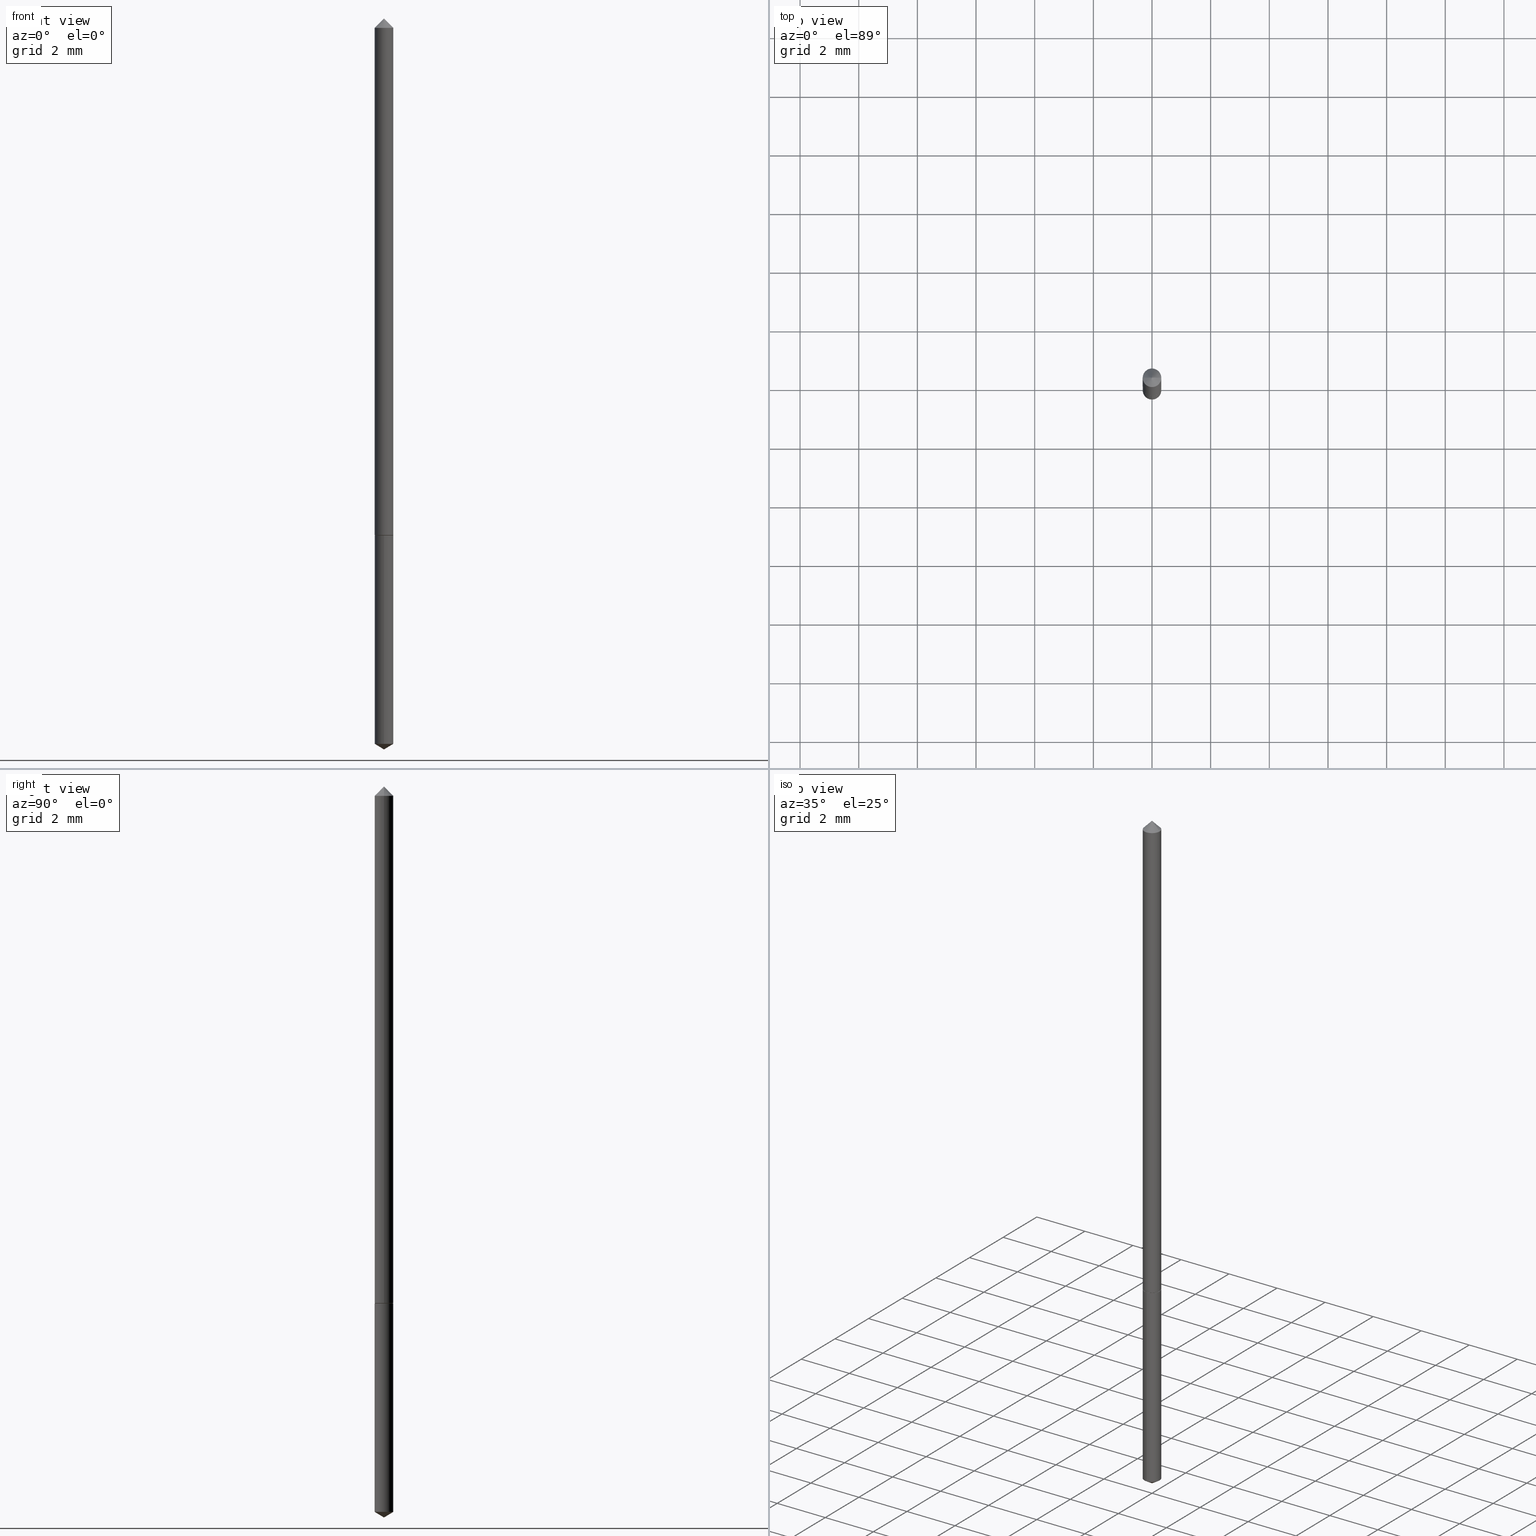
[diagram: canonical four-view strip — front | top / right | iso, engineering-drawing reading convention]
A machine part, canonical four-view strip (front | top / right | iso — engineering-drawing reading convention). The complete STEP part file that produces these views, byte-faithful:
ISO-10303-21;
HEADER;
FILE_DESCRIPTION (( 'STEP AP203' ),
    '1' );
FILE_NAME ('51072.STEP',
    '2024-04-22T18:23:46',
    ( '' ),
    ( '' ),
    'SwSTEP 2.0',
    'SolidWorks 2023',
    '' );
FILE_SCHEMA (( 'CONFIG_CONTROL_DESIGN' ));
ENDSEC;

DATA;
#1 = DIRECTION ( 'NONE',  ( 1.000000000000000000, -6.982962677686266711E-15, 4.876176775795936353E-29 ) ) ;
#2 = APPROVAL_STATUS ( 'not_yet_approved' ) ;
#3 = AXIS2_PLACEMENT_3D ( 'NONE', #85, #82, #169 ) ;
#4 = CARTESIAN_POINT ( 'NONE',  ( -8.728703347106090499E-17, -0.01250000000000249002, -0.7125000000000000222 ) ) ;
#5 = ADVANCED_FACE ( 'NONE', ( #41 ), #201, .T. ) ;
#6 = FACE_OUTER_BOUND ( 'NONE', #110, .T. ) ;
#7 = CARTESIAN_POINT ( 'NONE',  ( 1.742396524406909713E-29, -2.487680453925741193E-15, -0.7125000000000000222 ) ) ;
#8 = DIRECTION ( 'NONE',  ( 1.000000000000000000, -6.982962677686283277E-15, 0.000000000000000000 ) ) ;
#9 = DIRECTION ( 'NONE',  ( -2.445398323987981261E-29, 3.491582273361069499E-15, 1.000000000000000000 ) ) ;
#10 = EDGE_CURVE ( 'NONE', #217, #73, #38, .T. ) ;
#11 = CIRCLE ( 'NONE', #225, 0.01200000000000010433 ) ;
#12 = VECTOR ( 'NONE', #290, 39.37007874015748854 ) ;
#13 = DIMENSIONAL_EXPONENTS ( 1.000000000000000000, 0.000000000000000000, 0.000000000000000000, 0.000000000000000000, 0.000000000000000000, 0.000000000000000000, 0.000000000000000000 ) ;
#14 = LINE ( 'NONE', #49, #163 ) ;
#15 = MANIFOLD_SOLID_BREP ( 'Body-Move/Copy2[2]', #237 ) ;
#16 = CIRCLE ( 'NONE', #335, 0.01250000000000008916 ) ;
#17 = EDGE_CURVE ( 'NONE', #323, #360, #132, .T. ) ;
#18 = ORIENTED_EDGE ( 'NONE', *, *, #103, .T. ) ;
#19 = DIRECTION ( 'NONE',  ( -2.445398323987980980E-29, 3.491582273361069499E-15, 1.000000000000000000 ) ) ;
#20 = ORIENTED_EDGE ( 'NONE', *, *, #314, .F. ) ;
#21 = CARTESIAN_POINT ( 'NONE',  ( -0.01250000000000000590, -2.182175836777064042E-17, -0.03125000000000020123 ) ) ;
#22 = ORIENTED_EDGE ( 'NONE', *, *, #157, .F. ) ;
#23 = CARTESIAN_POINT ( 'NONE',  ( 7.642090019328601786E-31, -1.091087918388490144E-16, -0.03125000000000020123 ) ) ;
#24 = DATE_TIME_ROLE ( 'classification_date' ) ;
#25 = AXIS2_PLACEMENT_3D ( 'NONE', #108, #142, #55 ) ;
#26 = AXIS2_PLACEMENT_3D ( 'NONE', #195, #316, #166 ) ;
#27 = CARTESIAN_POINT ( 'NONE',  ( 2.445398323987981261E-29, -3.491582273361069499E-15, -1.000000000000000000 ) ) ;
#28 = CARTESIAN_POINT ( 'NONE',  ( 0.01200000000000010433, -2.571476006057977309E-15, -0.7125000000000000222 ) ) ;
#29 = APPLICATION_CONTEXT ( 'configuration controlled 3d designs of mechanical parts and assemblies' ) ;
#30 = CARTESIAN_POINT ( 'NONE',  ( 0.01250000000000008916, -2.573221746727398418E-15, -0.7119999999999999662 ) ) ;
#31 = EDGE_CURVE ( 'NONE', #86, #172, #32, .T. ) ;
#32 = CIRCLE ( 'NONE', #25, 0.01250000000000000069 ) ;
#33 = APPROVAL_PERSON_ORGANIZATION ( #178, #72, #118 ) ;
#34 = LENGTH_MEASURE_WITH_UNIT ( LENGTH_MEASURE( 0.02539999999999999897 ), #241 );
#35 = EDGE_CURVE ( 'NONE', #172, #86, #248, .T. ) ;
#36 = EDGE_LOOP ( 'NONE', ( #22, #239, #126 ) ) ;
#37 = CARTESIAN_POINT ( 'NONE',  ( 0.000000000000000000, 0.000000000000000000, 0.000000000000000000 ) ) ;
#38 = CIRCLE ( 'NONE', #101, 0.01200000000000010433 ) ;
#39 = EDGE_LOOP ( 'NONE', ( #127, #107, #135, #242 ) ) ;
#40 = PERSON_AND_ORGANIZATION ( #260, #115 ) ;
#41 = FACE_OUTER_BOUND ( 'NONE', #75, .T. ) ;
#42 = CARTESIAN_POINT ( 'NONE',  ( -9.383007602390250808E-28, 1.339723586724463166E-13, 38.37007874015748143 ) ) ;
#43 = ORIENTED_EDGE ( 'NONE', *, *, #31, .T. ) ;
#44 = CC_DESIGN_PERSON_AND_ORGANIZATION_ASSIGNMENT ( #173, #312, ( #279 ) ) ;
#45 = AXIS2_PLACEMENT_3D ( 'NONE', #81, #287, #283 ) ;
#46 = DIRECTION ( 'NONE',  ( -0.7071067811865112684, 7.493145998870223209E-15, 0.7071067811865837660 ) ) ;
#47 = ADVANCED_FACE ( 'NONE', ( #280 ), #74, .T. ) ;
#48 = APPLICATION_CONTEXT ( 'configuration controlled 3d designs of mechanical parts and assemblies' ) ;
#49 = CARTESIAN_POINT ( 'NONE',  ( 0.01250000000000000590, -1.948650168109932156E-16, -0.03125000000000020123 ) ) ;
#50 = CLOSED_SHELL ( 'NONE', ( #322, #294, #177, #244, #146 ) ) ;
#51 = AXIS2_PLACEMENT_3D ( 'NONE', #128, #236, #269 ) ;
#52 = DIRECTION ( 'NONE',  ( -2.445468806185136597E-29, 3.491481338843145583E-15, 1.000000000000000000 ) ) ;
#53 = DATE_AND_TIME ( #341, #205 ) ;
#54 = PLANE ( 'NONE',  #3 ) ;
#55 = DIRECTION ( 'NONE',  ( -6.982962677686265133E-15, -1.000000000000000000, 0.000000000000000000 ) ) ;
#56 = CALENDAR_DATE ( 2024, 22, 4 ) ;
#57 = EDGE_LOOP ( 'NONE', ( #332, #196, #106 ) ) ;
#58 = DIRECTION ( 'NONE',  ( 1.000000000000000000, -6.982962677686266711E-15, 4.876176775795936353E-29 ) ) ;
#59 = EDGE_CURVE ( 'NONE', #172, #281, #117, .T. ) ;
#60 = LINE ( 'NONE', #27, #12 ) ;
#61 = CARTESIAN_POINT ( 'NONE',  ( -8.728703347106090499E-17, -0.01250000000000249002, -0.7125000000000000222 ) ) ;
#62 = CARTESIAN_POINT ( 'NONE',  ( -0.01250000000000000590, -1.208703910577569624E-15, -0.03125000000000020123 ) ) ;
#63 = DATE_TIME_ROLE ( 'creation_date' ) ;
#64 = CALENDAR_DATE ( 2024, 22, 4 ) ;
#65 = MECHANICAL_CONTEXT ( 'NONE', #29, 'mechanical' ) ;
#66 = CARTESIAN_POINT ( 'NONE',  ( 1.742396524406909713E-29, -2.487680453925741193E-15, -0.7125000000000000222 ) ) ;
#67 = CONICAL_SURFACE ( 'NONE', #176, 65.52281426576944057, 1.029744258676661417 ) ;
#68 = EDGE_LOOP ( 'NONE', ( #98, #215 ) ) ;
#69 = DIRECTION ( 'NONE',  ( -6.982962677686265133E-15, -1.000000000000000000, 0.000000000000000000 ) ) ;
#70 = DIRECTION ( 'NONE',  ( 6.090539988449805257E-15, 0.8571673007021175517, 0.5150380749100452737 ) ) ;
#71 = DIRECTION ( 'NONE',  ( -2.445468806185136597E-29, 3.491481338843145583E-15, 1.000000000000000000 ) ) ;
#72 = APPROVAL ( #251, 'UNSPECIFIED' ) ;
#73 = VERTEX_POINT ( 'NONE', #76 ) ;
#74 = CONICAL_SURFACE ( 'NONE', #300, 0.01250000000000008916, 0.7853981633973970977 ) ;
#75 = EDGE_LOOP ( 'NONE', ( #180, #222, #152, #308 ) ) ;
#76 = CARTESIAN_POINT ( 'NONE',  ( -0.01200000000000010433, -2.399766098460417500E-15, -0.7125000000000000222 ) ) ;
#77 = CARTESIAN_POINT ( 'NONE',  ( -0.01250000000000008916, -2.397116871286306299E-15, -0.7119999999999999662 ) ) ;
#78 = ORIENTED_EDGE ( 'NONE', *, *, #288, .T. ) ;
#79 = CARTESIAN_POINT ( 'NONE',  ( 1.741173790003817192E-29, -2.485934713256319295E-15, -0.7119999999999999662 ) ) ;
#80 = CC_DESIGN_APPROVAL ( #151, ( #243 ) ) ;
#81 = CARTESIAN_POINT ( 'NONE',  ( 1.741173790003817192E-29, -2.485934713256319295E-15, -0.7119999999999999662 ) ) ;
#82 = DIRECTION ( 'NONE',  ( -2.438088387897960049E-29, 3.491481338843145188E-15, 1.000000000000000000 ) ) ;
#83 = SHAPE_DEFINITION_REPRESENTATION ( #213, #228 ) ;
#84 = VERTEX_POINT ( 'NONE', #249 ) ;
#85 = CARTESIAN_POINT ( 'NONE',  ( 1.742396524406909713E-29, -2.487680453925741193E-15, -0.7125000000000000222 ) ) ;
#86 = VERTEX_POINT ( 'NONE', #351 ) ;
#87 = FACE_OUTER_BOUND ( 'NONE', #119, .T. ) ;
#88 = CC_DESIGN_PERSON_AND_ORGANIZATION_ASSIGNMENT ( #139, #361, ( #279 ) ) ;
#89 = APPLICATION_PROTOCOL_DEFINITION ( 'international standard', 'config_control_design', 1994, #29 ) ;
#90 = ADVANCED_FACE ( 'NONE', ( #284 ), #182, .T. ) ;
#91 = DESIGN_CONTEXT ( 'detailed design', #48, 'design' ) ;
#92 = CONICAL_SURFACE ( 'NONE', #306, 0.01250000000000000590, 0.7853981633974449483 ) ;
#93 = COORDINATED_UNIVERSAL_TIME_OFFSET ( 5, 0, .BEHIND. ) ;
#94 = LINE ( 'NONE', #208, #175 ) ;
#95 = EDGE_LOOP ( 'NONE', ( #192, #186, #327, #355 ) ) ;
#96 = DIRECTION ( 'NONE',  ( 2.445468806185136597E-29, -3.491481338843145583E-15, -1.000000000000000000 ) ) ;
#97 = DIRECTION ( 'NONE',  ( -2.445468806185136877E-29, 3.491481338843145188E-15, 1.000000000000000000 ) ) ;
#98 = ORIENTED_EDGE ( 'NONE', *, *, #339, .T. ) ;
#99 = CARTESIAN_POINT ( 'NONE',  ( 0.01250000000000008916, -2.573221746727398418E-15, -0.7119999999999999662 ) ) ;
#100 = DIRECTION ( 'NONE',  ( 6.982962677686265922E-15, 1.000000000000000000, -3.491582273361069499E-15 ) ) ;
#101 = AXIS2_PLACEMENT_3D ( 'NONE', #326, #130, #104 ) ;
#102 = APPROVAL_PERSON_ORGANIZATION ( #282, #151, #337 ) ;
#103 = EDGE_CURVE ( 'NONE', #360, #323, #286, .T. ) ;
#104 = DIRECTION ( 'NONE',  ( 1.000000000000000000, -6.982962677686272233E-15, 0.000000000000000000 ) ) ;
#105 = DIRECTION ( 'NONE',  ( -6.982962677686265922E-15, -1.000000000000000000, 3.468864327941540966E-15 ) ) ;
#106 = ORIENTED_EDGE ( 'NONE', *, *, #31, .F. ) ;
#107 = ORIENTED_EDGE ( 'NONE', *, *, #113, .T. ) ;
#108 = CARTESIAN_POINT ( 'NONE',  ( 2.427081748169450084E-29, -3.465285928940082043E-15, -0.9924892422621556243 ) ) ;
#109 = VECTOR ( 'NONE', #358, 39.37007874015748143 ) ;
#110 = EDGE_LOOP ( 'NONE', ( #272, #216, #18 ) ) ;
#111 = CALENDAR_DATE ( 2024, 22, 4 ) ;
#112 = COORDINATED_UNIVERSAL_TIME_OFFSET ( 5, 0, .BEHIND. ) ;
#113 = EDGE_CURVE ( 'NONE', #84, #349, #16, .T. ) ;
#114 = CONICAL_SURFACE ( 'NONE', #317, 65.52281426576944057, 1.029744258676661417 ) ;
#115 = ORGANIZATION ( 'UNSPECIFIED', 'UNSPECIFIED', '' ) ;
#116 = DIRECTION ( 'NONE',  ( -0.7071067811865451302, 2.468850131082231817E-15, -0.7071067811865499042 ) ) ;
#117 = LINE ( 'NONE', #247, #291 ) ;
#118 = APPROVAL_ROLE ( '' ) ;
#119 = EDGE_LOOP ( 'NONE', ( #144, #209 ) ) ;
#120 = CYLINDRICAL_SURFACE ( 'NONE', #226, 0.01250000000000000069 ) ;
#121 = AXIS2_PLACEMENT_3D ( 'NONE', #23, #353, #255 ) ;
#122 = DIRECTION ( 'NONE',  ( -6.982962677686265133E-15, -1.000000000000000000, 0.000000000000000000 ) ) ;
#123 = EDGE_CURVE ( 'NONE', #73, #84, #189, .T. ) ;
#124 =( NAMED_UNIT ( * ) PLANE_ANGLE_UNIT ( ) SI_UNIT ( $, .RADIAN. ) );
#125 = AXIS2_PLACEMENT_3D ( 'NONE', #359, #221, #190 ) ;
#126 = ORIENTED_EDGE ( 'NONE', *, *, #35, .F. ) ;
#127 = ORIENTED_EDGE ( 'NONE', *, *, #288, .F. ) ;
#128 = CARTESIAN_POINT ( 'NONE',  ( 1.742396524406909713E-29, -2.487680453925741193E-15, -0.7125000000000000222 ) ) ;
#129 = EDGE_CURVE ( 'NONE', #224, #360, #14, .T. ) ;
#130 = DIRECTION ( 'NONE',  ( -2.445468806185136597E-29, 3.491481338843145583E-15, 1.000000000000000000 ) ) ;
#131 =( CONVERSION_BASED_UNIT ( 'INCH', #34 ) LENGTH_UNIT ( ) NAMED_UNIT ( #13 ) );
#132 = CIRCLE ( 'NONE', #309, 0.01250000000000000590 ) ;
#133 = DIRECTION ( 'NONE',  ( 1.000000000000000000, -6.982962677686272233E-15, 0.000000000000000000 ) ) ;
#134 = APPROVAL_PERSON_ORGANIZATION ( #263, #164, #343 ) ;
#135 = ORIENTED_EDGE ( 'NONE', *, *, #259, .T. ) ;
#136 = CARTESIAN_POINT ( 'NONE',  ( 7.642090019328601786E-31, -1.091087918388490144E-16, -0.03125000000000020123 ) ) ;
#137 = ORIENTED_EDGE ( 'NONE', *, *, #262, .T. ) ;
#138 = DIRECTION ( 'NONE',  ( 0.7071067811865451302, -7.319954787623248157E-15, -0.7071067811865499042 ) ) ;
#139 = PERSON_AND_ORGANIZATION ( #260, #115 ) ;
#140 = CC_DESIGN_DATE_AND_TIME_ASSIGNMENT ( #53, #63, ( #304 ) ) ;
#141 = ORIENTED_EDGE ( 'NONE', *, *, #207, .F. ) ;
#142 = DIRECTION ( 'NONE',  ( -2.445398323987981261E-29, 3.491582273361069499E-15, 1.000000000000000000 ) ) ;
#143 = CARTESIAN_POINT ( 'NONE',  ( 1.742396524406909713E-29, -2.487680453925741193E-15, -0.7125000000000000222 ) ) ;
#144 = ORIENTED_EDGE ( 'NONE', *, *, #10, .F. ) ;
#145 = APPROVAL_DATE_TIME ( #197, #72 ) ;
#146 = ADVANCED_FACE ( 'NONE', ( #310 ), #345, .F. ) ;
#147 = CARTESIAN_POINT ( 'NONE',  ( 4.585254011597159495E-31, -6.546527510330939136E-17, -0.01875000000000011727 ) ) ;
#148 = MANIFOLD_SOLID_BREP ( 'Body-Move/Copy2[1]', #50 ) ;
#149 = DIRECTION ( 'NONE',  ( -2.445468806185136597E-29, 3.491481338843145583E-15, 1.000000000000000000 ) ) ;
#150 = LINE ( 'NONE', #252, #109 ) ;
#151 = APPROVAL ( #333, 'UNSPECIFIED' ) ;
#152 = ORIENTED_EDGE ( 'NONE', *, *, #238, .T. ) ;
#153 = PERSON_AND_ORGANIZATION ( #260, #115 ) ;
#154 = LOCAL_TIME ( 14, 23, 46.00000000000000000, #354 ) ;
#155 = FACE_OUTER_BOUND ( 'NONE', #36, .T. ) ;
#156 = PERSON_AND_ORGANIZATION_ROLE ( 'creator' ) ;
#157 = EDGE_CURVE ( 'NONE', #253, #172, #94, .T. ) ;
#158 = DIRECTION ( 'NONE',  ( -2.445468806185136597E-29, 3.491481338843145583E-15, 1.000000000000000000 ) ) ;
#159 = FACE_OUTER_BOUND ( 'NONE', #57, .T. ) ;
#160 = ORIENTED_EDGE ( 'NONE', *, *, #207, .T. ) ;
#161 = EDGE_CURVE ( 'NONE', #73, #217, #11, .T. ) ;
#162 = CYLINDRICAL_SURFACE ( 'NONE', #187, 0.01250000000000004580 ) ;
#163 = VECTOR ( 'NONE', #138, 39.37007874015748143 ) ;
#164 = APPROVAL ( #2, 'UNSPECIFIED' ) ;
#165 = PERSON_AND_ORGANIZATION ( #260, #115 ) ;
#166 = DIRECTION ( 'NONE',  ( -6.982962677686265133E-15, -1.000000000000000000, 0.000000000000000000 ) ) ;
#167 = DIRECTION ( 'NONE',  ( -6.982962677686265133E-15, -1.000000000000000000, 0.000000000000000000 ) ) ;
#168 = APPROVAL_DATE_TIME ( #230, #151 ) ;
#169 = DIRECTION ( 'NONE',  ( 1.000000000000000000, -6.982962677686265922E-15, 4.876176775795935793E-29 ) ) ;
#170 = DATE_AND_TIME ( #111, #154 ) ;
#171 = CC_DESIGN_APPROVAL ( #164, ( #304 ) ) ;
#172 = VERTEX_POINT ( 'NONE', #273 ) ;
#173 = PERSON_AND_ORGANIZATION ( #260, #115 ) ;
#174 = LINE ( 'NONE', #4, #348 ) ;
#175 = VECTOR ( 'NONE', #70, 39.37007874015748143 ) ;
#176 = AXIS2_PLACEMENT_3D ( 'NONE', #210, #266, #319 ) ;
#177 = ADVANCED_FACE ( 'NONE', ( #155 ), #114, .T. ) ;
#178 = PERSON_AND_ORGANIZATION ( #260, #115 ) ;
#179 = DATE_AND_TIME ( #64, #261 ) ;
#180 = ORIENTED_EDGE ( 'NONE', *, *, #123, .F. ) ;
#181 = PERSON_AND_ORGANIZATION_ROLE ( 'design_owner' ) ;
#182 = CONICAL_SURFACE ( 'NONE', #121, 0.01250000000000000590, 0.7853981633974449483 ) ;
#183 = VECTOR ( 'NONE', #340, 39.37007874015748143 ) ;
#184 = ORIENTED_EDGE ( 'NONE', *, *, #339, .F. ) ;
#185 = ADVANCED_FACE ( 'NONE', ( #6 ), #92, .T. ) ;
#186 = ORIENTED_EDGE ( 'NONE', *, *, #35, .T. ) ;
#187 = AXIS2_PLACEMENT_3D ( 'NONE', #219, #276, #1 ) ;
#188 = ORIENTED_EDGE ( 'NONE', *, *, #10, .T. ) ;
#189 = LINE ( 'NONE', #77, #324 ) ;
#190 = DIRECTION ( 'NONE',  ( 1.000000000000000000, -6.982962677686266711E-15, 0.000000000000000000 ) ) ;
#191 = ADVANCED_FACE ( 'NONE', ( #331 ), #162, .T. ) ;
#192 = ORIENTED_EDGE ( 'NONE', *, *, #59, .F. ) ;
#193 = AXIS2_PLACEMENT_3D ( 'NONE', #7, #9, #69 ) ;
#194 = DIRECTION ( 'NONE',  ( -2.445468806185136597E-29, 3.491481338843145583E-15, 1.000000000000000000 ) ) ;
#195 = CARTESIAN_POINT ( 'NONE',  ( 1.742396524406909713E-29, -2.487680453925741193E-15, -0.7125000000000000222 ) ) ;
#196 = ORIENTED_EDGE ( 'NONE', *, *, #157, .T. ) ;
#197 = DATE_AND_TIME ( #296, #264 ) ;
#198 = FACE_OUTER_BOUND ( 'NONE', #328, .T. ) ;
#199 = PRODUCT_RELATED_PRODUCT_CATEGORY ( 'detail', '', ( #320 ) ) ;
#200 = SECURITY_CLASSIFICATION_LEVEL ( 'unclassified' ) ;
#201 = CONICAL_SURFACE ( 'NONE', #329, 0.01250000000000008916, 0.7853981633973970977 ) ;
#202 = CC_DESIGN_APPROVAL ( #72, ( #279 ) ) ;
#203 = CC_DESIGN_PERSON_AND_ORGANIZATION_ASSIGNMENT ( #153, #181, ( #320 ) ) ;
#204 = DIRECTION ( 'NONE',  ( 0.000000000000000000, 0.000000000000000000, 1.000000000000000000 ) ) ;
#205 = LOCAL_TIME ( 14, 23, 46.00000000000000000, #223 ) ;
#206 = DIRECTION ( 'NONE',  ( -2.445398323987980980E-29, 3.491582273361069499E-15, 1.000000000000000000 ) ) ;
#207 = EDGE_CURVE ( 'NONE', #349, #84, #342, .T. ) ;
#208 = CARTESIAN_POINT ( 'NONE',  ( 2.445499641834009681E-29, -3.491438441673027721E-15, -1.000000000000000000 ) ) ;
#209 = ORIENTED_EDGE ( 'NONE', *, *, #161, .F. ) ;
#210 = CARTESIAN_POINT ( 'NONE',  ( -9.383007602390250808E-28, 1.339723586724463166E-13, 38.37007874015748143 ) ) ;
#211 = ORIENTED_EDGE ( 'NONE', *, *, #129, .F. ) ;
#212 = CYLINDRICAL_SURFACE ( 'NONE', #51, 0.01250000000000000069 ) ;
#213 = PRODUCT_DEFINITION_SHAPE ( 'NONE', 'NONE',  #304 ) ;
#214 = CC_DESIGN_DATE_AND_TIME_ASSIGNMENT ( #170, #24, ( #243 ) ) ;
#215 = ORIENTED_EDGE ( 'NONE', *, *, #220, .T. ) ;
#216 = ORIENTED_EDGE ( 'NONE', *, *, #129, .T. ) ;
#217 = VERTEX_POINT ( 'NONE', #28 ) ;
#218 = AXIS2_PLACEMENT_3D ( 'NONE', #256, #149, #58 ) ;
#219 = CARTESIAN_POINT ( 'NONE',  ( 0.000000000000000000, 0.000000000000000000, 0.000000000000000000 ) ) ;
#220 = EDGE_CURVE ( 'NONE', #281, #302, #301, .T. ) ;
#221 = DIRECTION ( 'NONE',  ( -2.445468806185136597E-29, 3.491481338843145583E-15, 1.000000000000000000 ) ) ;
#222 = ORIENTED_EDGE ( 'NONE', *, *, #161, .T. ) ;
#223 = COORDINATED_UNIVERSAL_TIME_OFFSET ( 5, 0, .BEHIND. ) ;
#224 = VERTEX_POINT ( 'NONE', #147 ) ;
#225 = AXIS2_PLACEMENT_3D ( 'NONE', #305, #298, #133 ) ;
#226 = AXIS2_PLACEMENT_3D ( 'NONE', #143, #362, #122 ) ;
#227 = CARTESIAN_POINT ( 'NONE',  ( 2.427081748169450084E-29, -3.465285928940082043E-15, -0.9924892422621556243 ) ) ;
#228 = ADVANCED_BREP_SHAPE_REPRESENTATION ( '51072', ( #148, #15, #325 ), #352 ) ;
#229 = CC_DESIGN_PERSON_AND_ORGANIZATION_ASSIGNMENT ( #165, #250, ( #243 ) ) ;
#230 = DATE_AND_TIME ( #56, #364 ) ;
#231 = VECTOR ( 'NONE', #116, 39.37007874015748143 ) ;
#232 = LINE ( 'NONE', #21, #231 ) ;
#233 = EDGE_CURVE ( 'NONE', #253, #86, #60, .T. ) ;
#234 = DIRECTION ( 'NONE',  ( 1.000000000000000000, 0.000000000000000000, 0.000000000000000000 ) ) ;
#235 = UNCERTAINTY_MEASURE_WITH_UNIT (LENGTH_MEASURE( 1.000000000000000082E-05 ), #131, 'distance_accuracy_value', 'NONE');
#236 = DIRECTION ( 'NONE',  ( -2.445398323987981261E-29, 3.491582273361069499E-15, 1.000000000000000000 ) ) ;
#237 = CLOSED_SHELL ( 'NONE', ( #185, #275, #47, #270, #5, #191, #90 ) ) ;
#238 = EDGE_CURVE ( 'NONE', #217, #349, #315, .T. ) ;
#239 = ORIENTED_EDGE ( 'NONE', *, *, #233, .T. ) ;
#240 = ORIENTED_EDGE ( 'NONE', *, *, #238, .F. ) ;
#241 =( LENGTH_UNIT ( ) NAMED_UNIT ( * ) SI_UNIT ( $, .METRE. ) );
#242 = ORIENTED_EDGE ( 'NONE', *, *, #17, .F. ) ;
#243 = SECURITY_CLASSIFICATION ( '', '', #200 ) ;
#244 = ADVANCED_FACE ( 'NONE', ( #257 ), #120, .T. ) ;
#245 = CARTESIAN_POINT ( 'NONE',  ( 7.642090019328601786E-31, -1.091087918388490144E-16, -0.03125000000000020123 ) ) ;
#246 = ORIENTED_EDGE ( 'NONE', *, *, #259, .F. ) ;
#247 = CARTESIAN_POINT ( 'NONE',  ( 8.881784197002994473E-17, 0.01249999999999751310, -0.7125000000000000222 ) ) ;
#248 = CIRCLE ( 'NONE', #278, 0.01250000000000000069 ) ;
#249 = CARTESIAN_POINT ( 'NONE',  ( -0.01250000000000008916, -2.397116871286306299E-15, -0.7119999999999999662 ) ) ;
#250 = PERSON_AND_ORGANIZATION_ROLE ( 'classification_officer' ) ;
#251 = APPROVAL_STATUS ( 'not_yet_approved' ) ;
#252 = CARTESIAN_POINT ( 'NONE',  ( 0.01250000000000004580, -8.728703347107865436E-17, 6.095220969744942512E-31 ) ) ;
#253 = VERTEX_POINT ( 'NONE', #311 ) ;
#254 = CIRCLE ( 'NONE', #193, 0.01250000000000000069 ) ;
#255 = DIRECTION ( 'NONE',  ( -1.000000000000000000, 6.982962677686266711E-15, 0.000000000000000000 ) ) ;
#256 = CARTESIAN_POINT ( 'NONE',  ( 0.000000000000000000, 0.000000000000000000, 0.000000000000000000 ) ) ;
#257 = FACE_OUTER_BOUND ( 'NONE', #95, .T. ) ;
#258 = LINE ( 'NONE', #346, #292 ) ;
#259 = EDGE_CURVE ( 'NONE', #349, #360, #150, .T. ) ;
#260 = PERSON ( 'UNSPECIFIED', 'UNSPECIFIED', 'UNSPECIFIED', ('UNSPECIFIED'), ('UNSPECIFIED'), ('UNSPECIFIED') ) ;
#261 = LOCAL_TIME ( 14, 23, 46.00000000000000000, #93 ) ;
#262 = EDGE_CURVE ( 'NONE', #224, #323, #232, .T. ) ;
#263 = PERSON_AND_ORGANIZATION ( #260, #115 ) ;
#264 = LOCAL_TIME ( 14, 23, 46.00000000000000000, #112 ) ;
#265 = ORIENTED_EDGE ( 'NONE', *, *, #59, .T. ) ;
#266 = DIRECTION ( 'NONE',  ( -2.445398323987981261E-29, 3.491582273361069499E-15, 1.000000000000000000 ) ) ;
#267 = DIRECTION ( 'NONE',  ( 2.445398323987980980E-29, -3.491582273361069499E-15, -1.000000000000000000 ) ) ;
#268 = ORIENTED_EDGE ( 'NONE', *, *, #103, .F. ) ;
#269 = DIRECTION ( 'NONE',  ( -6.982962677686265133E-15, -1.000000000000000000, 0.000000000000000000 ) ) ;
#270 = ADVANCED_FACE ( 'NONE', ( #87 ), #54, .F. ) ;
#271 = DIRECTION ( 'NONE',  ( -2.445398323987981261E-29, 3.491582273361069499E-15, 1.000000000000000000 ) ) ;
#272 = ORIENTED_EDGE ( 'NONE', *, *, #262, .F. ) ;
#273 = CARTESIAN_POINT ( 'NONE',  ( 8.881784197003679796E-17, 0.01249999999999653645, -0.9924892422621556243 ) ) ;
#274 = DIRECTION ( 'NONE',  ( 1.000000000000000000, -6.982962677686266711E-15, 0.000000000000000000 ) ) ;
#275 = ADVANCED_FACE ( 'NONE', ( #198 ), #313, .T. ) ;
#276 = DIRECTION ( 'NONE',  ( -2.445468806185136597E-29, 3.491481338843145583E-15, 1.000000000000000000 ) ) ;
#277 = DIRECTION ( 'NONE',  ( -2.445398323987981261E-29, 3.491582273361069499E-15, 1.000000000000000000 ) ) ;
#278 = AXIS2_PLACEMENT_3D ( 'NONE', #227, #277, #167 ) ;
#279 = PRODUCT_DEFINITION_FORMATION_WITH_SPECIFIED_SOURCE ( 'ANY', '', #320, .NOT_KNOWN. ) ;
#280 = FACE_OUTER_BOUND ( 'NONE', #321, .T. ) ;
#281 = VERTEX_POINT ( 'NONE', #289 ) ;
#282 = PERSON_AND_ORGANIZATION ( #260, #115 ) ;
#283 = DIRECTION ( 'NONE',  ( 1.000000000000000000, -6.982962677686283277E-15, 0.000000000000000000 ) ) ;
#284 = FACE_OUTER_BOUND ( 'NONE', #338, .T. ) ;
#285 = ORIENTED_EDGE ( 'NONE', *, *, #17, .T. ) ;
#286 = CIRCLE ( 'NONE', #125, 0.01250000000000000590 ) ;
#287 = DIRECTION ( 'NONE',  ( -2.445468806185136597E-29, 3.491481338843145583E-15, 1.000000000000000000 ) ) ;
#288 = EDGE_CURVE ( 'NONE', #84, #323, #258, .T. ) ;
#289 = CARTESIAN_POINT ( 'NONE',  ( 8.881784197003682261E-17, 0.01249999999999751310, -0.7125000000000000222 ) ) ;
#290 = DIRECTION ( 'NONE',  ( -5.985567269335967312E-15, -0.8571673007021139989, 0.5150380749100511579 ) ) ;
#291 = VECTOR ( 'NONE', #19, 39.37007874015748143 ) ;
#292 = VECTOR ( 'NONE', #97, 39.37007874015748143 ) ;
#293 = CARTESIAN_POINT ( 'NONE',  ( 0.01250000000000000590, -1.963958253099273852E-16, -0.03125000000000020123 ) ) ;
#294 = ADVANCED_FACE ( 'NONE', ( #159 ), #67, .T. ) ;
#295 = FACE_OUTER_BOUND ( 'NONE', #350, .T. ) ;
#296 = CALENDAR_DATE ( 2024, 22, 4 ) ;
#297 = APPROVAL_DATE_TIME ( #179, #164 ) ;
#298 = DIRECTION ( 'NONE',  ( -2.445468806185136597E-29, 3.491481338843145583E-15, 1.000000000000000000 ) ) ;
#299 = APPLICATION_PROTOCOL_DEFINITION ( 'international standard', 'config_control_design', 1994, #48 ) ;
#300 = AXIS2_PLACEMENT_3D ( 'NONE', #330, #194, #356 ) ;
#301 = CIRCLE ( 'NONE', #26, 0.01250000000000000069 ) ;
#302 = VERTEX_POINT ( 'NONE', #61 ) ;
#303 =( NAMED_UNIT ( * ) SI_UNIT ( $, .STERADIAN. ) SOLID_ANGLE_UNIT ( ) );
#304 = PRODUCT_DEFINITION ( 'UNKNOWN', '', #279, #91 ) ;
#305 = CARTESIAN_POINT ( 'NONE',  ( 1.742396524406909713E-29, -2.487680453925741193E-15, -0.7125000000000000222 ) ) ;
#306 = AXIS2_PLACEMENT_3D ( 'NONE', #136, #96, #336 ) ;
#307 = DIRECTION ( 'NONE',  ( 1.000000000000000000, -6.982962677686283277E-15, 0.000000000000000000 ) ) ;
#308 = ORIENTED_EDGE ( 'NONE', *, *, #113, .F. ) ;
#309 = AXIS2_PLACEMENT_3D ( 'NONE', #245, #71, #274 ) ;
#310 = FACE_OUTER_BOUND ( 'NONE', #68, .T. ) ;
#311 = CARTESIAN_POINT ( 'NONE',  ( 2.445398323987981261E-29, -3.491582273361069499E-15, -1.000000000000000000 ) ) ;
#312 = PERSON_AND_ORGANIZATION_ROLE ( 'creator' ) ;
#313 = CYLINDRICAL_SURFACE ( 'NONE', #218, 0.01250000000000004580 ) ;
#314 = EDGE_CURVE ( 'NONE', #86, #302, #174, .T. ) ;
#315 = LINE ( 'NONE', #30, #183 ) ;
#316 = DIRECTION ( 'NONE',  ( -2.445398323987981261E-29, 3.491582273361069499E-15, 1.000000000000000000 ) ) ;
#317 = AXIS2_PLACEMENT_3D ( 'NONE', #42, #271, #105 ) ;
#318 = CC_DESIGN_SECURITY_CLASSIFICATION ( #243, ( #279 ) ) ;
#319 = DIRECTION ( 'NONE',  ( -6.982962677686265922E-15, -1.000000000000000000, 3.468864327941540966E-15 ) ) ;
#320 = PRODUCT ( '51072', '51072', '', ( #65 ) ) ;
#321 = EDGE_LOOP ( 'NONE', ( #188, #344, #141, #240 ) ) ;
#322 = ADVANCED_FACE ( 'NONE', ( #295 ), #212, .T. ) ;
#323 = VERTEX_POINT ( 'NONE', #62 ) ;
#324 = VECTOR ( 'NONE', #46, 39.37007874015748143 ) ;
#325 = AXIS2_PLACEMENT_3D ( 'NONE', #37, #204, #234 ) ;
#326 = CARTESIAN_POINT ( 'NONE',  ( 1.742396524406909713E-29, -2.487680453925741193E-15, -0.7125000000000000222 ) ) ;
#327 = ORIENTED_EDGE ( 'NONE', *, *, #314, .T. ) ;
#328 = EDGE_LOOP ( 'NONE', ( #160, #78, #268, #246 ) ) ;
#329 = AXIS2_PLACEMENT_3D ( 'NONE', #347, #158, #8 ) ;
#330 = CARTESIAN_POINT ( 'NONE',  ( 1.741173790003817192E-29, -2.485934713256319295E-15, -0.7119999999999999662 ) ) ;
#331 = FACE_OUTER_BOUND ( 'NONE', #39, .T. ) ;
#332 = ORIENTED_EDGE ( 'NONE', *, *, #233, .F. ) ;
#333 = APPROVAL_STATUS ( 'not_yet_approved' ) ;
#334 = CC_DESIGN_PERSON_AND_ORGANIZATION_ASSIGNMENT ( #40, #156, ( #304 ) ) ;
#335 = AXIS2_PLACEMENT_3D ( 'NONE', #79, #52, #307 ) ;
#336 = DIRECTION ( 'NONE',  ( -1.000000000000000000, 6.982962677686266711E-15, 0.000000000000000000 ) ) ;
#337 = APPROVAL_ROLE ( '' ) ;
#338 = EDGE_LOOP ( 'NONE', ( #211, #137, #285 ) ) ;
#339 = EDGE_CURVE ( 'NONE', #302, #281, #254, .T. ) ;
#340 = DIRECTION ( 'NONE',  ( 0.7071067811865112684, -2.468850131081876830E-15, 0.7071067811865837660 ) ) ;
#341 = CALENDAR_DATE ( 2024, 22, 4 ) ;
#342 = CIRCLE ( 'NONE', #45, 0.01250000000000008916 ) ;
#343 = APPROVAL_ROLE ( '' ) ;
#344 = ORIENTED_EDGE ( 'NONE', *, *, #123, .T. ) ;
#345 = PLANE ( 'NONE',  #363 ) ;
#346 = CARTESIAN_POINT ( 'NONE',  ( -0.01250000000000004580, 8.881784197001284864E-17, -6.148668862818655174E-31 ) ) ;
#347 = CARTESIAN_POINT ( 'NONE',  ( 1.741173790003817192E-29, -2.485934713256319295E-15, -0.7119999999999999662 ) ) ;
#348 = VECTOR ( 'NONE', #206, 39.37007874015748143 ) ;
#349 = VERTEX_POINT ( 'NONE', #99 ) ;
#350 = EDGE_LOOP ( 'NONE', ( #43, #265, #184, #20 ) ) ;
#351 = CARTESIAN_POINT ( 'NONE',  ( -8.728703347105407641E-17, -0.01250000000000346667, -0.9924892422621556243 ) ) ;
#352 =( GEOMETRIC_REPRESENTATION_CONTEXT ( 3 ) GLOBAL_UNCERTAINTY_ASSIGNED_CONTEXT ( ( #235 ) ) GLOBAL_UNIT_ASSIGNED_CONTEXT ( ( #131, #124, #303 ) ) REPRESENTATION_CONTEXT ( 'NONE', 'WORKASPACE' ) );
#353 = DIRECTION ( 'NONE',  ( 2.445468806185136597E-29, -3.491481338843145583E-15, -1.000000000000000000 ) ) ;
#354 = COORDINATED_UNIVERSAL_TIME_OFFSET ( 5, 0, .BEHIND. ) ;
#355 = ORIENTED_EDGE ( 'NONE', *, *, #220, .F. ) ;
#356 = DIRECTION ( 'NONE',  ( 1.000000000000000000, -6.982962677686283277E-15, 0.000000000000000000 ) ) ;
#357 = COORDINATED_UNIVERSAL_TIME_OFFSET ( 5, 0, .BEHIND. ) ;
#358 = DIRECTION ( 'NONE',  ( -2.445468806185136877E-29, 3.491481338843145188E-15, 1.000000000000000000 ) ) ;
#359 = CARTESIAN_POINT ( 'NONE',  ( 7.642090019328601786E-31, -1.091087918388490144E-16, -0.03125000000000020123 ) ) ;
#360 = VERTEX_POINT ( 'NONE', #293 ) ;
#361 = PERSON_AND_ORGANIZATION_ROLE ( 'design_supplier' ) ;
#362 = DIRECTION ( 'NONE',  ( -2.445398323987981261E-29, 3.491582273361069499E-15, 1.000000000000000000 ) ) ;
#363 = AXIS2_PLACEMENT_3D ( 'NONE', #66, #267, #100 ) ;
#364 = LOCAL_TIME ( 14, 23, 46.00000000000000000, #357 ) ;
ENDSEC;
END-ISO-10303-21;
